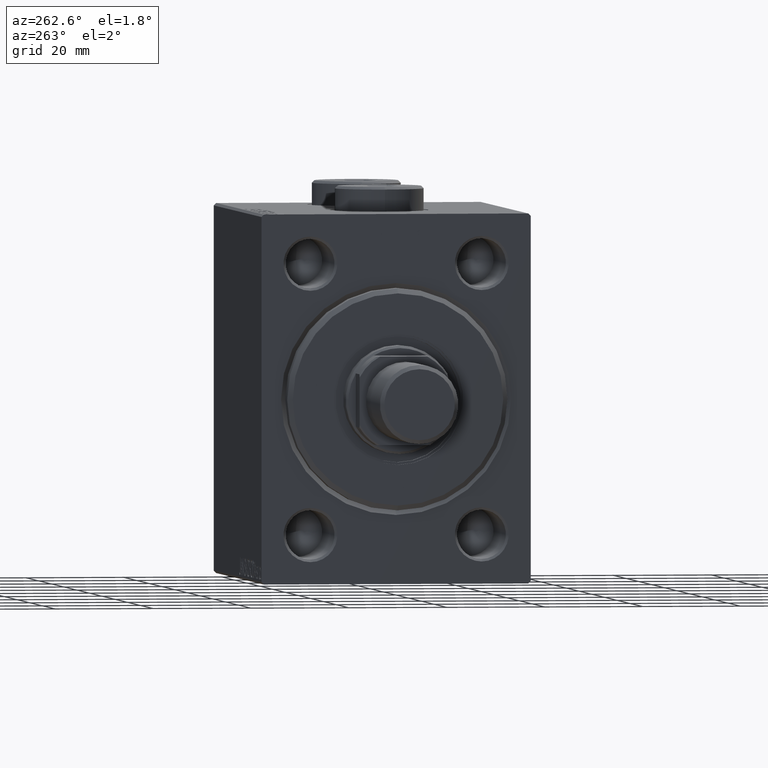
[diagram: clean part render]
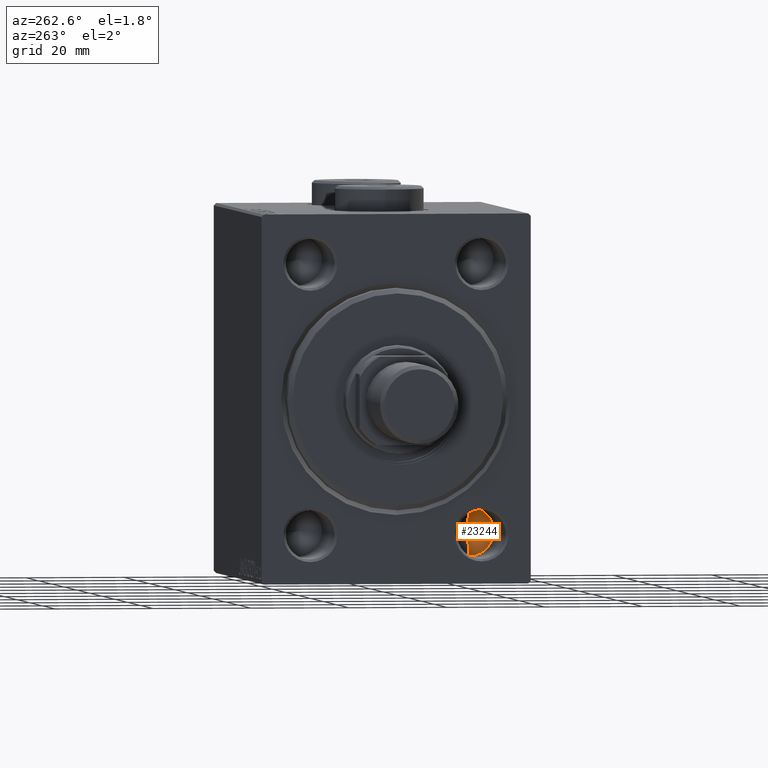
[diagram: same view with one face highlighted and labeled with its STEP entity id]
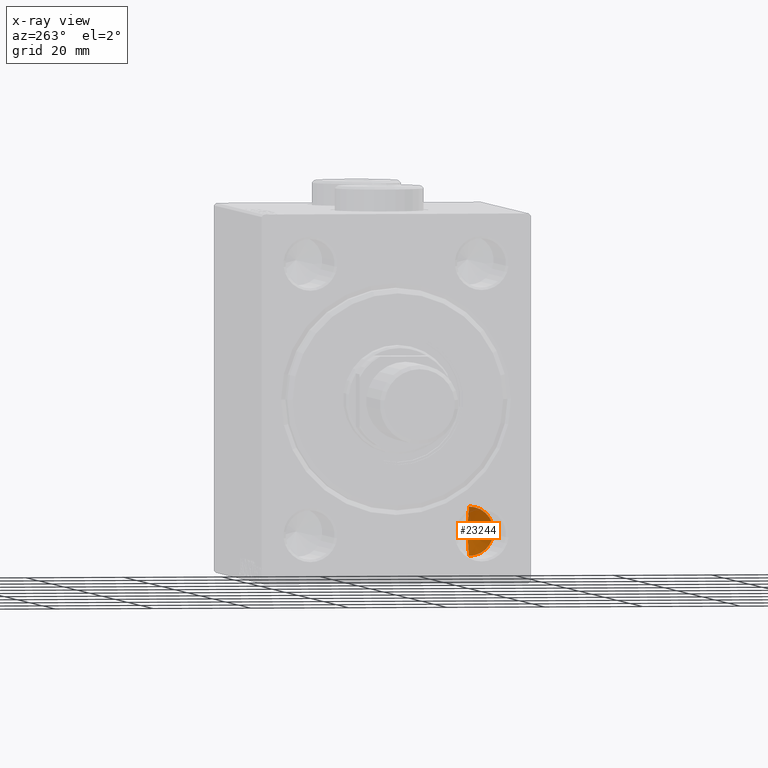
[diagram: x-ray of the same camera — body ghosted, the highlighted face saturated]
A machine part, auxiliary view. The second image highlights one B-rep face of the part: STEP entity #23244.
The next image is the same camera in x-ray: the body ghosted, the highlighted face saturated — about 4% of this face is hidden behind the body in this view.
In plain terms, the highlighted conical surface has half-angle 59 deg.
Its self-contained STEP definition (entity closure, byte-faithful):
#1021 = ORIENTED_EDGE ( 'NONE', *, *, #16598, .F. ) ;
#1551 = CONICAL_SURFACE ( 'NONE', #43179, 4.999999999999997335, 1.029744258676653201 ) ;
#2406 = DIRECTION ( 'NONE',  ( -0.5150380749100552658, 1.049727191138617833E-16, -0.8571673007021116675 ) ) ;
#3431 = VECTOR ( 'NONE', #2406, 1000.000000000000000 ) ;
#5440 = CARTESIAN_POINT ( 'NONE',  ( 20.00000000000000000, -17.50000000000000000, -32.49999999999999289 ) ) ;
#11867 = AXIS2_PLACEMENT_3D ( 'NONE', #27357, #41545, #19219 ) ;
#12961 = FACE_OUTER_BOUND ( 'NONE', #34629, .T. ) ;
#15376 = VERTEX_POINT ( 'NONE', #27758 ) ;
#16052 = EDGE_CURVE ( 'NONE', #26883, #16180, #23766, .T. ) ;
#16180 = VERTEX_POINT ( 'NONE', #43349 ) ;
#16598 = EDGE_CURVE ( 'NONE', #15376, #16180, #30459, .T. ) ;
#19219 = DIRECTION ( 'NONE',  ( 0.000000000000000000, 0.000000000000000000, 1.000000000000000000 ) ) ;
#23244 = ADVANCED_FACE ( 'NONE', ( #12961 ), #1551, .F. ) ;
#23766 = CIRCLE ( 'NONE', #11867, 4.999999999999997335 ) ;
#24149 = DIRECTION ( 'NONE',  ( -1.000000000000000000, -0.000000000000000000, -0.000000000000000000 ) ) ;
#24380 = DIRECTION ( 'NONE',  ( 0.000000000000000000, 0.000000000000000000, 1.000000000000000000 ) ) ;
#26883 = VERTEX_POINT ( 'NONE', #39772 ) ;
#27357 = CARTESIAN_POINT ( 'NONE',  ( 20.00000000000000000, -17.50000000000000000, -27.49999999999999645 ) ) ;
#27758 = CARTESIAN_POINT ( 'NONE',  ( 23.00430309513780358, -17.50000000000000711, -27.49999999999999645 ) ) ;
#27879 = CARTESIAN_POINT ( 'NONE',  ( 20.00000000000000000, -17.50000000000000000, -27.49999999999999645 ) ) ;
#30459 = LINE ( 'NONE', #38132, #37138 ) ;
#34629 = EDGE_LOOP ( 'NONE', ( #1021, #42204, #44536 ) ) ;
#37138 = VECTOR ( 'NONE', #37675, 1000.000000000000000 ) ;
#37675 = DIRECTION ( 'NONE',  ( -0.5150380749100552658, 0.000000000000000000, 0.8571673007021116675 ) ) ;
#38132 = CARTESIAN_POINT ( 'NONE',  ( 20.00000000000000000, -17.50000000000000000, -22.50000000000000000 ) ) ;
#39772 = CARTESIAN_POINT ( 'NONE',  ( 20.00000000000000000, -17.50000000000000000, -32.49999999999999289 ) ) ;
#41485 = EDGE_CURVE ( 'NONE', #15376, #26883, #45432, .T. ) ;
#41545 = DIRECTION ( 'NONE',  ( -1.000000000000000000, -0.000000000000000000, -0.000000000000000000 ) ) ;
#42204 = ORIENTED_EDGE ( 'NONE', *, *, #41485, .T. ) ;
#43179 = AXIS2_PLACEMENT_3D ( 'NONE', #27879, #24149, #24380 ) ;
#43349 = CARTESIAN_POINT ( 'NONE',  ( 20.00000000000000000, -17.50000000000000000, -22.50000000000000000 ) ) ;
#44536 = ORIENTED_EDGE ( 'NONE', *, *, #16052, .T. ) ;
#45432 = LINE ( 'NONE', #5440, #3431 ) ;